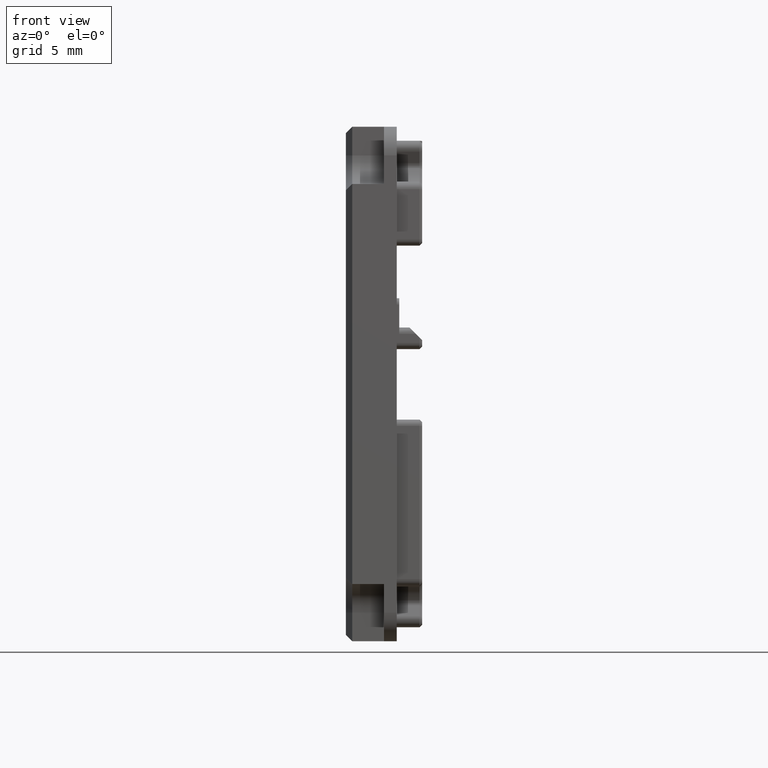
[diagram: clean part render]
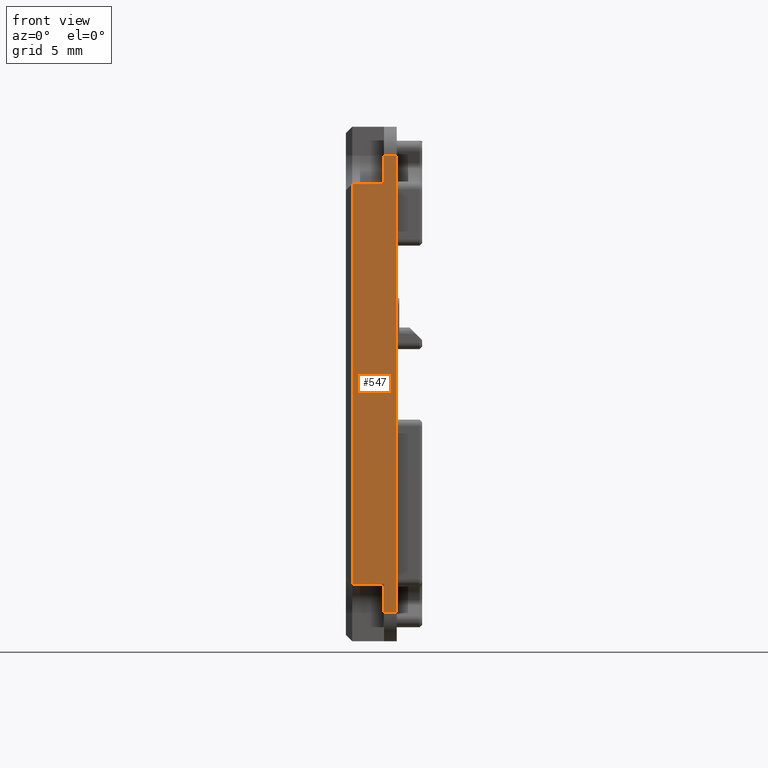
[diagram: same view with one face highlighted and labeled with its STEP entity id]
A machine part, front view. The second image highlights one B-rep face of the part: STEP entity #547.
In plain terms, the highlighted planar face has unit normal (0, -1, 0).
Its self-contained STEP definition (entity closure, byte-faithful):
#547=ADVANCED_FACE('',(#972),#4075,.T.);
#972=FACE_OUTER_BOUND('',#1432,.F.);
#1432=EDGE_LOOP('',(#2040,#2041,#2042,#2043,#2044,#2045,#2046,#2047));
#2040=ORIENTED_EDGE('',*,*,#6944,.F.);
#2041=ORIENTED_EDGE('',*,*,#6961,.T.);
#2042=ORIENTED_EDGE('',*,*,#6973,.F.);
#2043=ORIENTED_EDGE('',*,*,#6966,.F.);
#2044=ORIENTED_EDGE('',*,*,#6974,.T.);
#2045=ORIENTED_EDGE('',*,*,#6953,.T.);
#2046=ORIENTED_EDGE('',*,*,#6951,.F.);
#2047=ORIENTED_EDGE('',*,*,#6710,.T.);
#4075=PLANE('',#10311);
#6710=EDGE_CURVE('',#9849,#9848,#7790,.T.);
#6944=EDGE_CURVE('',#9624,#9848,#7906,.T.);
#6951=EDGE_CURVE('',#9849,#9617,#7913,.T.);
#6953=EDGE_CURVE('',#9615,#9617,#7915,.T.);
#6961=EDGE_CURVE('',#9624,#9610,#7920,.T.);
#6966=EDGE_CURVE('',#9605,#9606,#7923,.T.);
#6973=EDGE_CURVE('',#9606,#9610,#7927,.T.);
#6974=EDGE_CURVE('',#9605,#9615,#7928,.T.);
#7790=LINE('',#13908,#8554);
#7906=LINE('',#14142,#8670);
#7913=LINE('',#14149,#8677);
#7915=LINE('',#14151,#8679);
#7920=LINE('',#14159,#8684);
#7923=LINE('',#14164,#8687);
#7927=LINE('',#14171,#8691);
#7928=LINE('',#14172,#8692);
#8554=VECTOR('',#10805,31.4999999188449);
#8670=VECTOR('',#11157,2.5);
#8677=VECTOR('',#11164,2.5);
#8679=VECTOR('',#11166,2.24999650753739);
#8684=VECTOR('',#11177,2.24999650753784);
#8687=VECTOR('',#11184,35.9999930150747);
#8691=VECTOR('',#11194,1.);
#8692=VECTOR('',#11195,1.);
#9605=VERTEX_POINT('',#13344);
#9606=VERTEX_POINT('',#13345);
#9610=VERTEX_POINT('',#13349);
#9615=VERTEX_POINT('',#13354);
#9617=VERTEX_POINT('',#13356);
#9624=VERTEX_POINT('',#13363);
#9848=VERTEX_POINT('',#13587);
#9849=VERTEX_POINT('',#13588);
#10311=AXIS2_PLACEMENT_3D('',#14943,#12160,#12161);
#10805=DIRECTION('',(0.,0.,1.));
#11157=DIRECTION('',(-1.,0.,0.));
#11164=DIRECTION('',(1.,0.,0.));
#11166=DIRECTION('',(0.,0.,1.));
#11177=DIRECTION('',(0.,0.,1.));
#11184=DIRECTION('',(0.,0.,1.));
#11194=DIRECTION('',(-1.,0.,0.));
#11195=DIRECTION('',(-1.,0.,0.));
#12160=DIRECTION('',(0.,-1.,0.));
#12161=DIRECTION('',(0.,0.,1.));
#13344=CARTESIAN_POINT('',(0.,-20.2499998972767,-17.9999964390568));
#13345=CARTESIAN_POINT('',(0.,-20.2499998972767,17.9999965760178));
#13349=CARTESIAN_POINT('',(-0.999999999999998,-20.2499998972767,17.9999965760178));
#13354=CARTESIAN_POINT('',(-0.999999999999995,-20.2499998972767,-17.9999964390567));
#13356=CARTESIAN_POINT('',(-0.999999999999996,-20.2499999243282,-15.7499999315194));
#13363=CARTESIAN_POINT('',(-0.999999999999998,-20.2499999387024,15.7500000684756));
#13587=CARTESIAN_POINT('',(-3.5,-20.249999897275,15.7500000684767));
#13588=CARTESIAN_POINT('',(-3.49999999763619,-20.2499999392934,-15.7499999126701));
#13908=CARTESIAN_POINT('',(-3.5,-20.2499998972767,-15.7499998503648));
#14142=CARTESIAN_POINT('',(-1.,-20.2499998972767,15.7500000684734));
#14149=CARTESIAN_POINT('',(-3.5,-20.2499998972767,-15.7499999315194));
#14151=CARTESIAN_POINT('',(-0.999999999999992,-20.2499998972767,-17.9999964390568));
#14159=CARTESIAN_POINT('',(-0.999999999999997,-20.2499998972767,15.7500000684801));
#14164=CARTESIAN_POINT('',(0.,-20.2499998972767,-17.9999964390568));
#14171=CARTESIAN_POINT('',(0.,-20.2499998972767,17.9999965760178));
#14172=CARTESIAN_POINT('',(0.,-20.2499998972767,-17.9999964390568));
#14943=CARTESIAN_POINT('',(0.359999930150748,-20.2499998972767,-18.3599963692075));